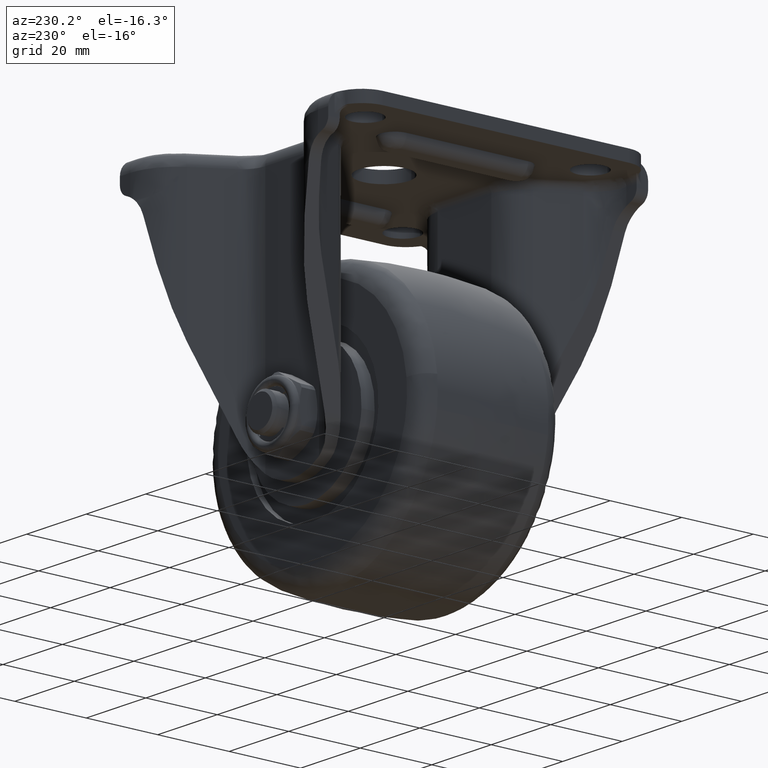
[diagram: clean part render]
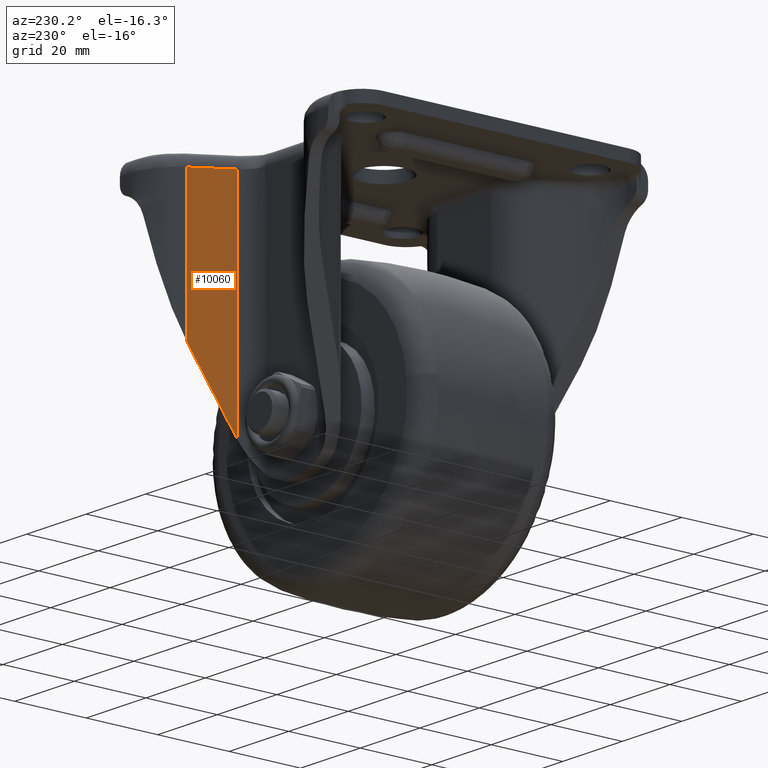
[diagram: same view with one face highlighted and labeled with its STEP entity id]
A machine part, auxiliary view. The second image highlights one B-rep face of the part: STEP entity #10060.
In plain terms, the highlighted face is a freeform B-spline surface patch.
Its self-contained STEP definition (entity closure, byte-faithful):
#4333=CARTESIAN_POINT('',(14.587803335174700,28.879383681937501,-64.506894530254996));
#4334=VERTEX_POINT('',#4333);
#4335=CARTESIAN_POINT('',(20.182171974635551,38.293394102267250,-43.240729303762663));
#4336=VERTEX_POINT('',#4335);
#4337=CARTESIAN_POINT('',(14.587803335174700,28.879383681937501,-64.506894530254996));
#4338=CARTESIAN_POINT('',(20.182171974635551,38.293394102267250,-43.240729303762663));
#4339=QUASI_UNIFORM_CURVE('',1,(#4337,#4338),.UNSPECIFIED.,.F.,.U.);
#4340=EDGE_CURVE('',#4334,#4336,#4339,.T.);
#8440=CARTESIAN_POINT('',(14.587801642140240,28.879383681937501,-4.0));
#8441=VERTEX_POINT('',#8440);
#8501=CARTESIAN_POINT('',(20.182173826665451,38.293392412047062,-4.0));
#8502=VERTEX_POINT('',#8501);
#8516=CARTESIAN_POINT('',(14.587801642140240,28.879383681937501,-4.0));
#8517=CARTESIAN_POINT('',(20.182173826665451,38.293392412047062,-4.0));
#8518=QUASI_UNIFORM_CURVE('',1,(#8516,#8517),.UNSPECIFIED.,.F.,.U.);
#8519=EDGE_CURVE('',#8441,#8502,#8518,.T.);
#9965=CARTESIAN_POINT('',(20.182171974635551,38.293394102267250,-43.240729303762663));
#9966=CARTESIAN_POINT('',(20.182173826665451,38.293392412047062,-4.0));
#9967=QUASI_UNIFORM_CURVE('',1,(#9965,#9966),.UNSPECIFIED.,.F.,.U.);
#9968=EDGE_CURVE('',#4336,#8502,#9967,.T.);
#9996=CARTESIAN_POINT('',(14.587803335174700,28.879383681937501,-64.506894530254996));
#9997=CARTESIAN_POINT('',(14.587801642140240,28.879383681937501,-4.0));
#9998=QUASI_UNIFORM_CURVE('',1,(#9996,#9997),.UNSPECIFIED.,.F.,.U.);
#9999=EDGE_CURVE('',#4334,#8441,#9998,.T.);
#10049=CARTESIAN_POINT('',(14.308365249898610,28.409151887080089,-67.529216634744301));
#10050=CARTESIAN_POINT('',(20.461611265210141,38.763625883130857,-67.529216634744301));
#10051=CARTESIAN_POINT('',(14.308365249898610,28.409151887080089,-0.977678977458271));
#10052=CARTESIAN_POINT('',(20.461611265210141,38.763625883130857,-0.977678977458271));
#10053=B_SPLINE_SURFACE_WITH_KNOTS('',1,1,((#10049,#10051),(#10050,#10052)),.UNSPECIFIED.,.F.,.F.,.U.,(2,2),(2,2),(0.0,12.044814994836520),(0.0,66.551537657286033),.UNSPECIFIED.);
#10054=ORIENTED_EDGE('',*,*,#4340,.F.);
#10055=ORIENTED_EDGE('',*,*,#9999,.T.);
#10056=ORIENTED_EDGE('',*,*,#8519,.T.);
#10057=ORIENTED_EDGE('',*,*,#9968,.F.);
#10058=EDGE_LOOP('',(#10054,#10055,#10056,#10057));
#10059=FACE_OUTER_BOUND('',#10058,.T.);
#10060=ADVANCED_FACE('',(#10059),#10053,.F.);